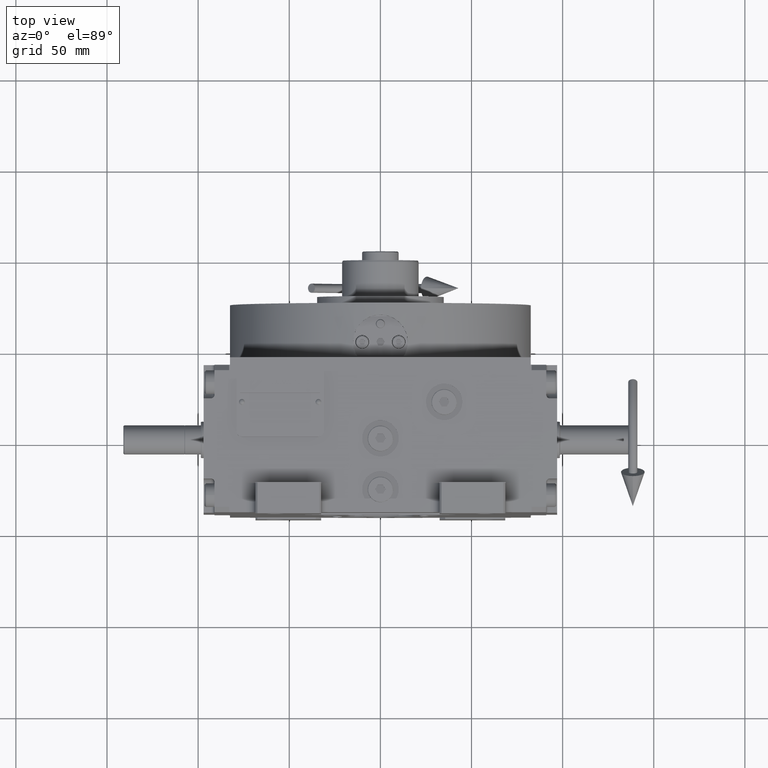
[diagram: clean part render]
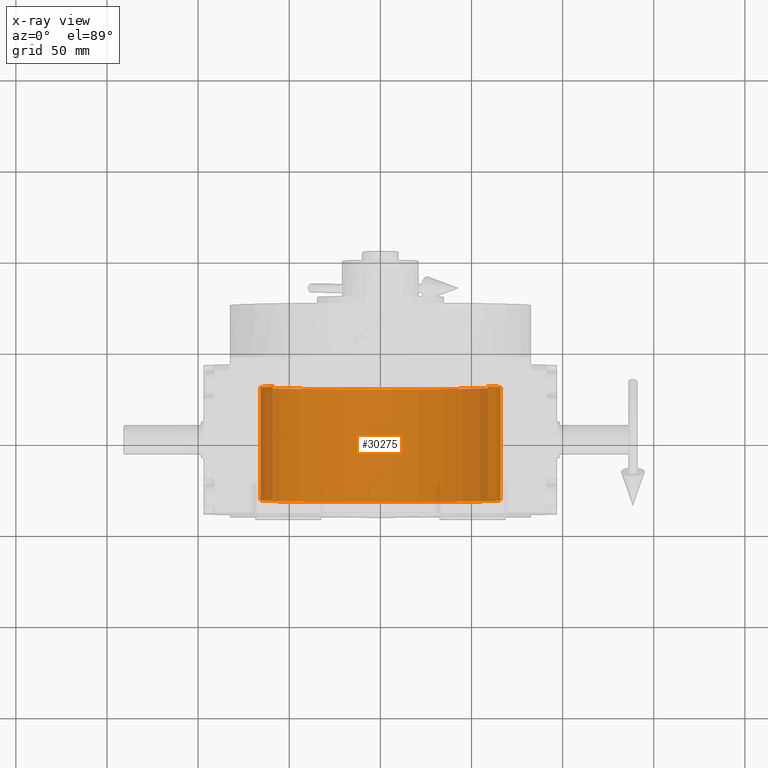
[diagram: x-ray — body ghosted, one internal face saturated and labeled with its STEP entity id]
A machine part, top view, then the same camera in x-ray: the body is ghosted and one INTERNAL B-rep face — a face not visible from any outside direction — is saturated and labeled: STEP entity #30275.
In plain terms, the highlighted cylindrical surface (partial cylindrical patch) has radius 66 mm, axis along (0, 1, 0).
Its self-contained STEP definition (entity closure, byte-faithful):
#2417 = CYLINDRICAL_SURFACE ( 'NONE', #28676, 66.00000000000000000 ) ;
#3723 = EDGE_CURVE ( 'NONE', #45814, #22925, #61188, .T. ) ;
#5405 = AXIS2_PLACEMENT_3D ( 'NONE', #26006, #54451, #10160 ) ;
#6359 = ORIENTED_EDGE ( 'NONE', *, *, #18680, .T. ) ;
#7120 = EDGE_CURVE ( 'NONE', #45814, #65115, #47568, .T. ) ;
#10160 = DIRECTION ( 'NONE',  ( 0.000000000000000000, 0.000000000000000000, 1.000000000000000000 ) ) ;
#18680 = EDGE_CURVE ( 'NONE', #56905, #22925, #36812, .T. ) ;
#19038 = VECTOR ( 'NONE', #52627, 1000.000000000000000 ) ;
#22925 = VERTEX_POINT ( 'NONE', #49126 ) ;
#25616 = ORIENTED_EDGE ( 'NONE', *, *, #58408, .T. ) ;
#25793 = CARTESIAN_POINT ( 'NONE',  ( 58.78775382679628336, 30.00000000000001421, 30.00000000000000000 ) ) ;
#26006 = CARTESIAN_POINT ( 'NONE',  ( 0.000000000000000000, 30.00000000000001421, 0.000000000000000000 ) ) ;
#26436 = ORIENTED_EDGE ( 'NONE', *, *, #3723, .F. ) ;
#28676 = AXIS2_PLACEMENT_3D ( 'NONE', #41685, #63630, #36292 ) ;
#30275 = ADVANCED_FACE ( 'NONE', ( #69742 ), #2417, .F. ) ;
#30673 = CARTESIAN_POINT ( 'NONE',  ( 58.78775382679628336, 111.8035300579860802, 30.00000000000000000 ) ) ;
#33243 = EDGE_LOOP ( 'NONE', ( #6359, #26436, #34184, #25616 ) ) ;
#33934 = CARTESIAN_POINT ( 'NONE',  ( 58.78775382679628336, -31.99999999999998579, 30.00000000000000000 ) ) ;
#34184 = ORIENTED_EDGE ( 'NONE', *, *, #7120, .T. ) ;
#36292 = DIRECTION ( 'NONE',  ( 0.000000000000000000, 0.000000000000000000, 1.000000000000000000 ) ) ;
#36812 = LINE ( 'NONE', #69921, #66043 ) ;
#41685 = CARTESIAN_POINT ( 'NONE',  ( 0.000000000000000000, 111.8035300579860802, 0.000000000000000000 ) ) ;
#42226 = DIRECTION ( 'NONE',  ( 0.000000000000000000, -1.000000000000000000, 0.000000000000000000 ) ) ;
#43253 = DIRECTION ( 'NONE',  ( -0.000000000000000000, 1.000000000000000000, -0.000000000000000000 ) ) ;
#45814 = VERTEX_POINT ( 'NONE', #33934 ) ;
#47568 = LINE ( 'NONE', #30673, #19038 ) ;
#49017 = DIRECTION ( 'NONE',  ( 0.000000000000000000, 0.000000000000000000, 1.000000000000000000 ) ) ;
#49122 = CIRCLE ( 'NONE', #5405, 66.00000000000000000 ) ;
#49126 = CARTESIAN_POINT ( 'NONE',  ( -58.78775382679628336, -31.99999999999998579, 30.00000000000000000 ) ) ;
#52627 = DIRECTION ( 'NONE',  ( -0.000000000000000000, 1.000000000000000000, -0.000000000000000000 ) ) ;
#54451 = DIRECTION ( 'NONE',  ( -0.000000000000000000, 1.000000000000000000, -0.000000000000000000 ) ) ;
#54781 = CARTESIAN_POINT ( 'NONE',  ( 0.000000000000000000, -31.99999999999998579, 0.000000000000000000 ) ) ;
#56905 = VERTEX_POINT ( 'NONE', #69100 ) ;
#57753 = AXIS2_PLACEMENT_3D ( 'NONE', #54781, #43253, #49017 ) ;
#58408 = EDGE_CURVE ( 'NONE', #65115, #56905, #49122, .T. ) ;
#61188 = CIRCLE ( 'NONE', #57753, 66.00000000000000000 ) ;
#63630 = DIRECTION ( 'NONE',  ( -0.000000000000000000, 1.000000000000000000, -0.000000000000000000 ) ) ;
#65115 = VERTEX_POINT ( 'NONE', #25793 ) ;
#66043 = VECTOR ( 'NONE', #42226, 1000.000000000000000 ) ;
#69100 = CARTESIAN_POINT ( 'NONE',  ( -58.78775382679628336, 30.00000000000001421, 30.00000000000000000 ) ) ;
#69742 = FACE_OUTER_BOUND ( 'NONE', #33243, .T. ) ;
#69921 = CARTESIAN_POINT ( 'NONE',  ( -58.78775382679628336, 111.8035300579860802, 30.00000000000000000 ) ) ;